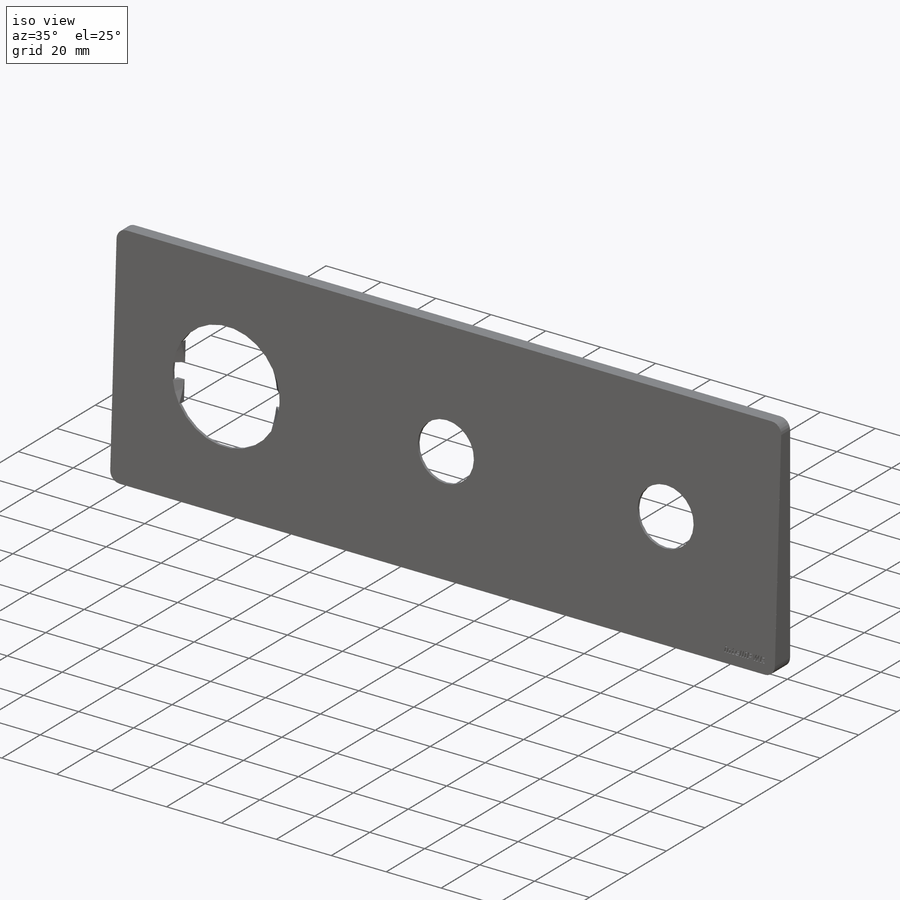
[diagram: iso view]
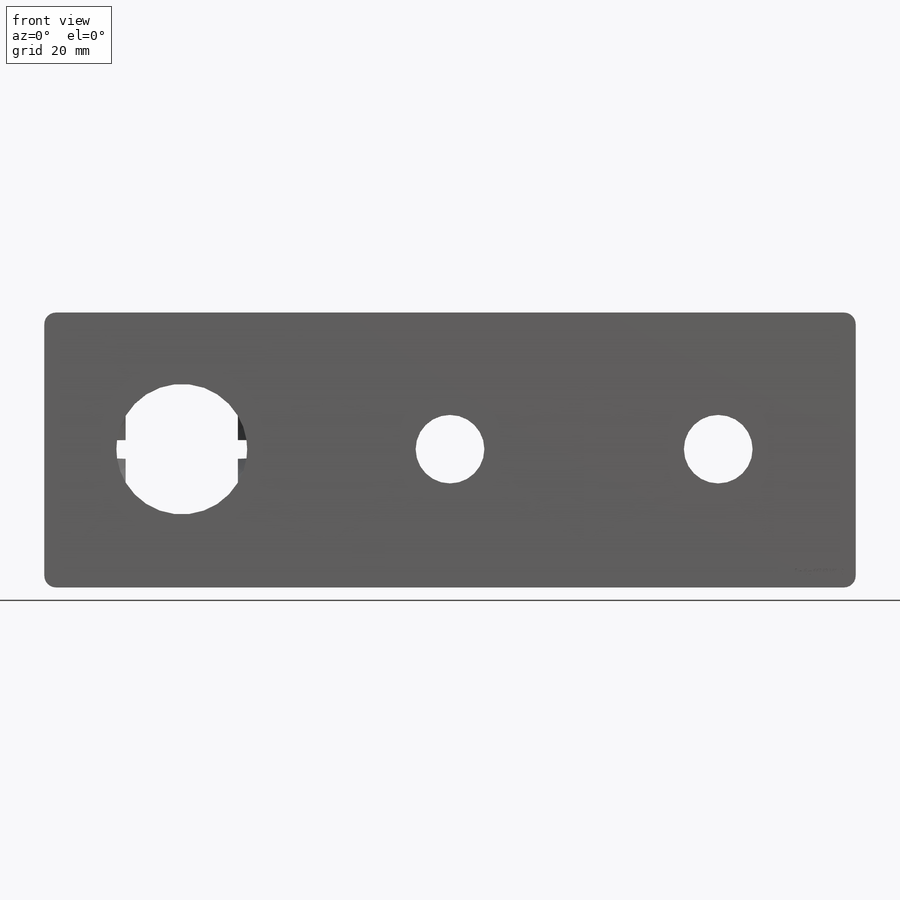
[diagram: front view]
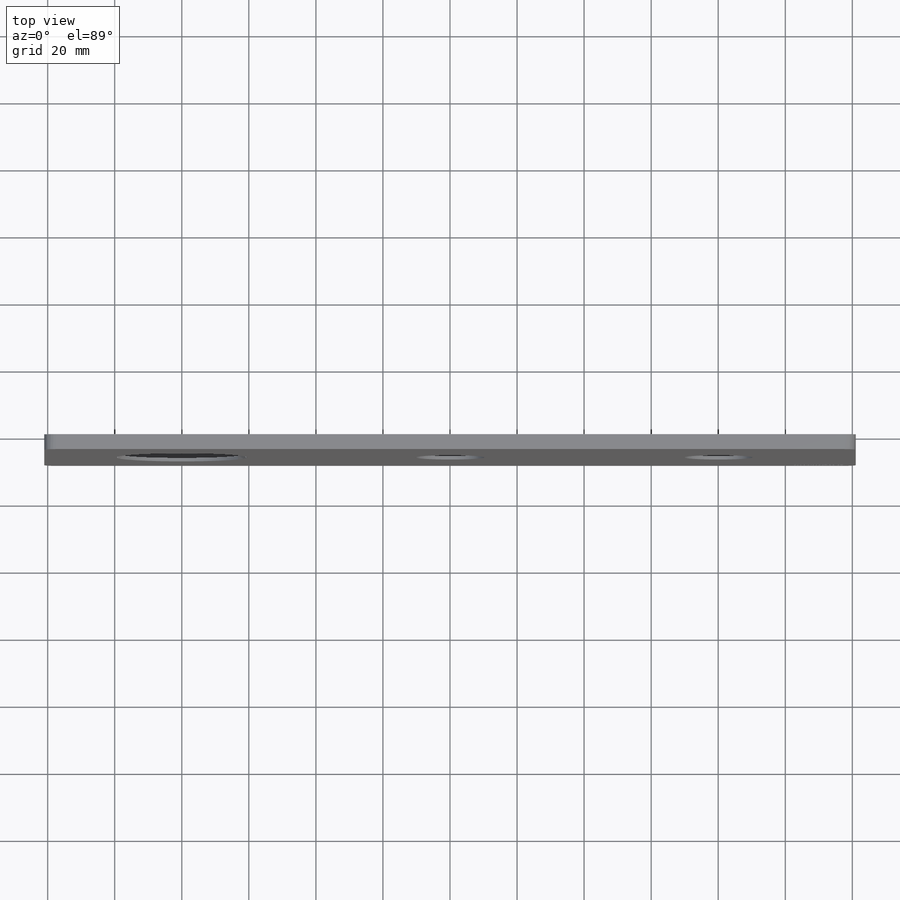
[diagram: top view]
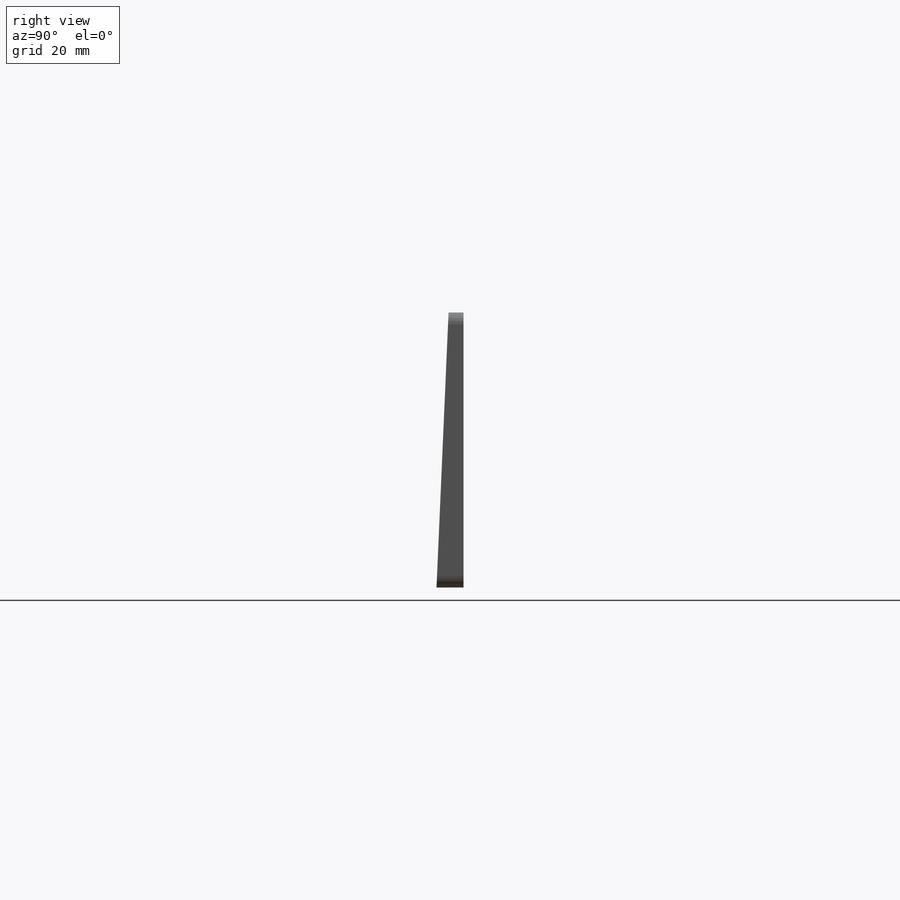
[diagram: right view]
SOLIDWORKS PART (.sldprt)
format: sldprt  version: not decoded by parser v0  size: 714,240 bytes
history: native  units: mm
features: sketch x14, cut_extrude x8, extrude x3, plane x2, material x1, cut_revolve x1 (+12 scaffold rows collapsed)
feature tree (41):
  scaffold x12  (default folders/planes/origin — collapsed)
  material  "Malzeme <belirli değil>"
  sketch  "Sketch1"  dims[c1.D3=2.5mm c1.D1=240.0mm c1.D2=80.0mm c1.D4=40.0mm c1.D5=75.0mm c2.D5=90.0deg c3.D5=40.0mm c3.D1=8.0mm c4.D5=1.0mm c4.D6=1.0mm c4.D7=5.0mm]
  sketch  "Sketch5"  dims[c1.D1=3.5mm c1.D2=80.0mm c1.D3=40.0mm c1.D4=1.0mm c1.D5=7.0mm c2.D1=8.0mm]
  cut_extrude  "Cut-Extrude2"  Depth=242mm
  sketch  "Sketch6"  dims[c1.D1=1.0mm c1.D2=~1.000957mm c2.D2=90.0deg]
  extrude  "Boss-Extrude1"  Depth=242mm
  sketch  "Sketch7"  dims[c1.D3=2.5mm c1.D1=80.0mm c1.D2=80.0mm c1.D4=40.0mm c1.D5=40.0mm c2.D1=121.0mm]
  sketch  "Sketch8"  dims[D1=39.0mm]
  cut_extrude  "Kes-Ekstrüzyon5"  Depth=10mm
  cut_extrude  "Cut-Extrude3"  Depth=82mm
  sketch  "Sketch9"  dims[c1.D1=4.0mm c1.D2=~9.704379mm c2.D2=90.0deg c3.D2=62.8mm c3.D3=~4.096828mm c3.D4=~4.349765mm c4.D3=~8.199916mm c4.D4=~2.423992mm c5.D3=~4.59573mm c5.D4=~4.425153mm c6.D3=~6.479819mm c6.D4=~3.941333mm c7.D3=~9.247359mm c7.D4=~3.595879mm c8.D3=~0.778548mm c8.D4=~4.049152mm c8.D1=~3.503348mm c8.D2=3.5mm c9.D1=~0.653693mm c9.D2=~0.271979mm c10.D1=~2.642047mm c10.D2=~0.271979mm c11.D1=3.5mm]
  cut_extrude  "Cut-Extrude13"  Depth=0.5mm
  sketch  "Çizim2"  dims[D2=39.0mm D1=33.5mm D3=5.6mm]
  extrude  "Yükseklik-Ekstrüzyon1"  Depth=2.5mm
  sketch  "Çizim3"
  plane  "Düzlem1"
  sketch  "Çizim4"  dims[D1=19.5mm D2=2.5mm D3=2.6mm]
  cut_revolve  "Kes-Döndür2"  Angle=360deg
  plane  "Düzlem2"  Offset=0mm
  sketch  "Çizim7"  dims[c1.D3=10.0mm c1.D4=10.0mm c1.D5=10.0mm c1.D6=10.0mm c1.D7=10.0mm c1.D8=10.0mm c1.D10=10.0mm c1.D1=12.0mm c1.D2=12.0mm c2.D4=80.0mm c2.D5=80.0mm c3.D4=80.0mm c3.D5=12.0mm c3.D6=29.0mm c3.D7=24.0mm c3.D8=12.0mm c3.D9=29.0mm c3.D10=12.0mm]
  extrude  "Yükseklik-Ekstrüzyon4"  Depth=20.6mm
  sketch  "Çizim10"
  cut_extrude  "Kes-Ekstrüzyon2"  Depth=3mm
  sketch  "Çizim18"
  cut_extrude  "Kes-Ekstrüzyon8"  Depth=1.5mm
  sketch  "Çizim19"  dims[D1=3.1mm D2=3.1mm D3=3.1mm D5=3.1mm D6=3.1mm D4=4.0]
  cut_extrude  "Kes-Ekstrüzyon10"  Depth=2mm
  sketch  "Çizim20"  dims[c1.D1=20.5mm c1.D2=20.5mm c2.D1=80.0mm c2.D2=80.0mm c2.D3=~131.588886mm]
  cut_extrude  "Kes-Ekstrüzyon11"  Depth=2mm
decode coverage: 23 of 26 modeling features carry decoded parameters
note: ~ marks probable driven/reference dimensions
note: suppression state not decoded; provenance and decode notes live in map.json
